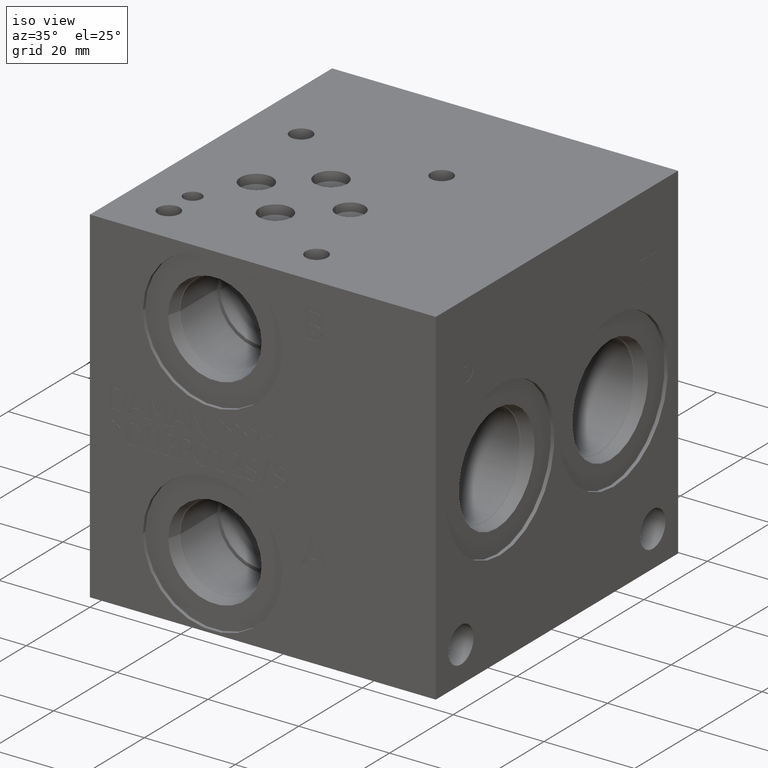
[diagram: clean part render]
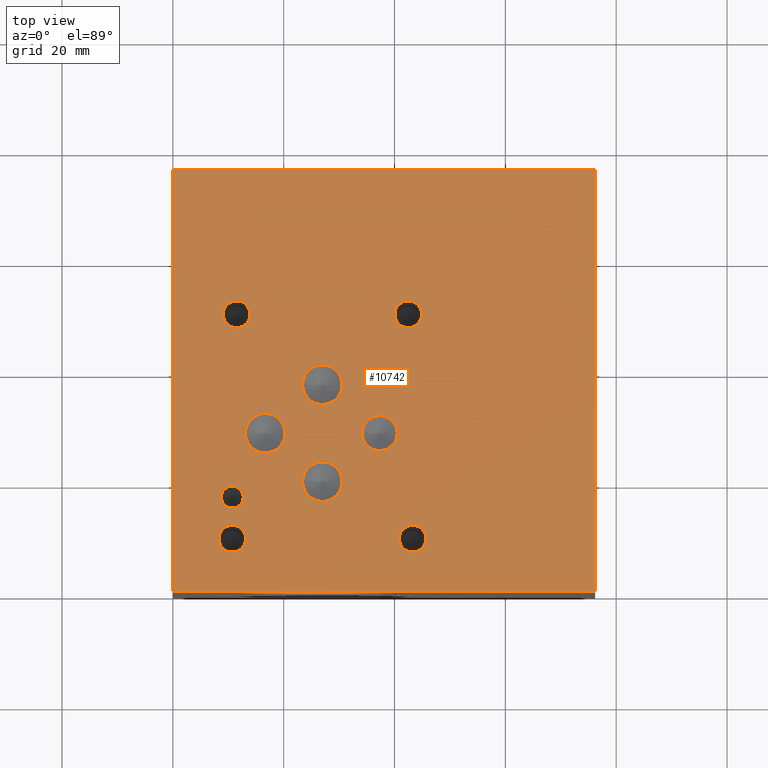
[diagram: tour spotlight — one face highlighted and labeled with its STEP entity id]
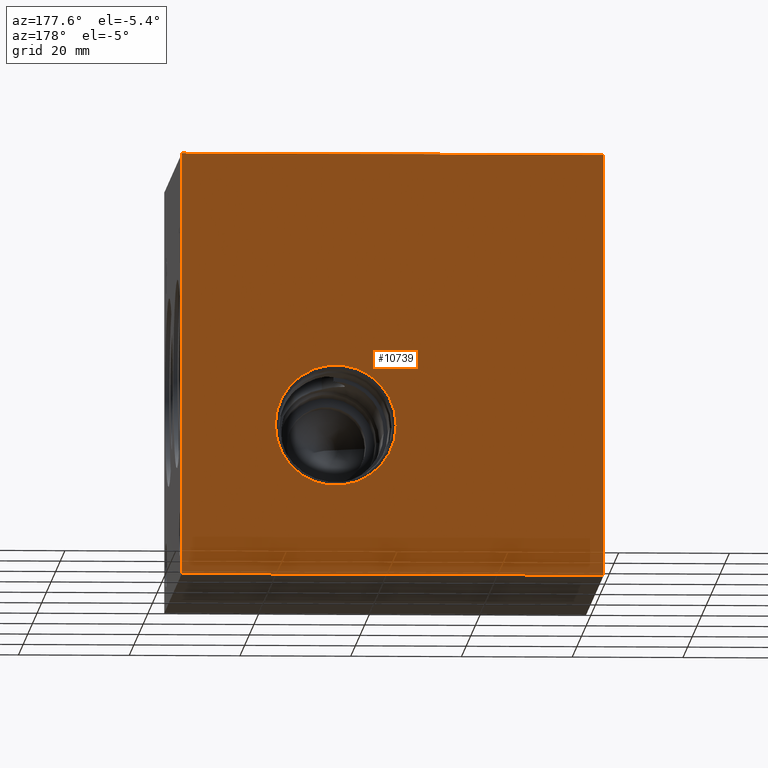
[diagram: tour spotlight — one face highlighted and labeled with its STEP entity id]
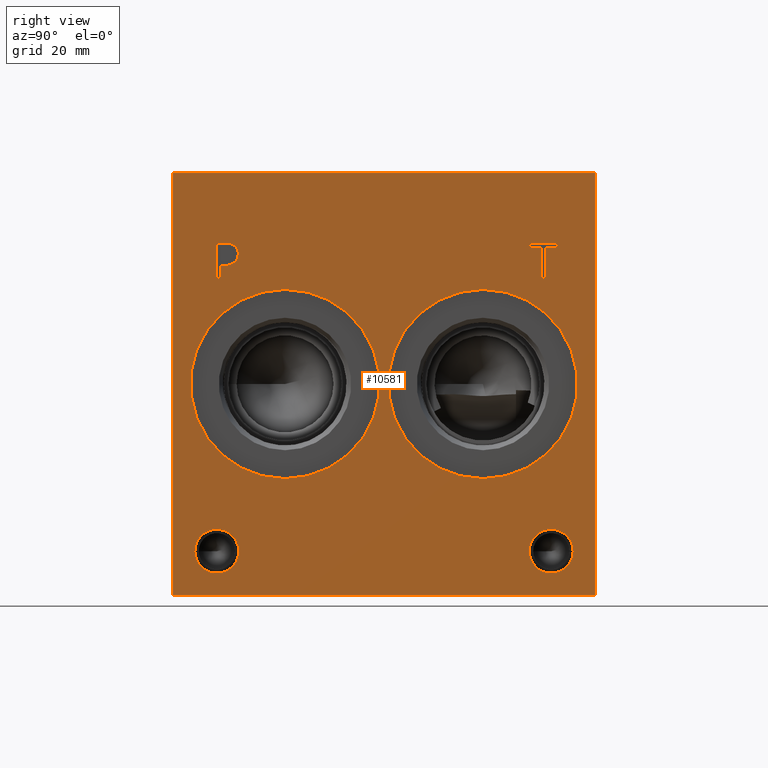
[diagram: tour spotlight — one face highlighted and labeled with its STEP entity id]
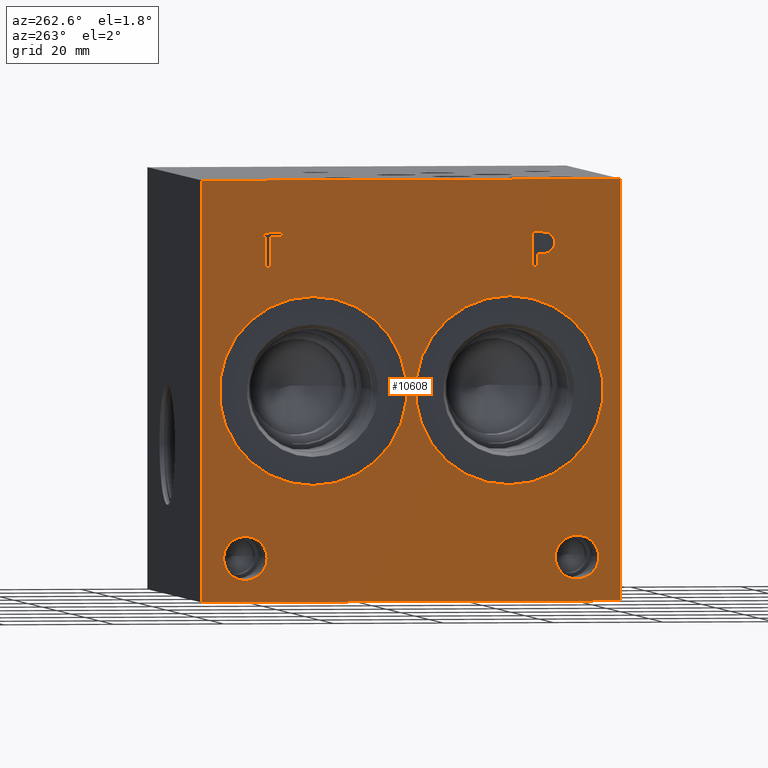
[diagram: tour spotlight — one face highlighted and labeled with its STEP entity id]
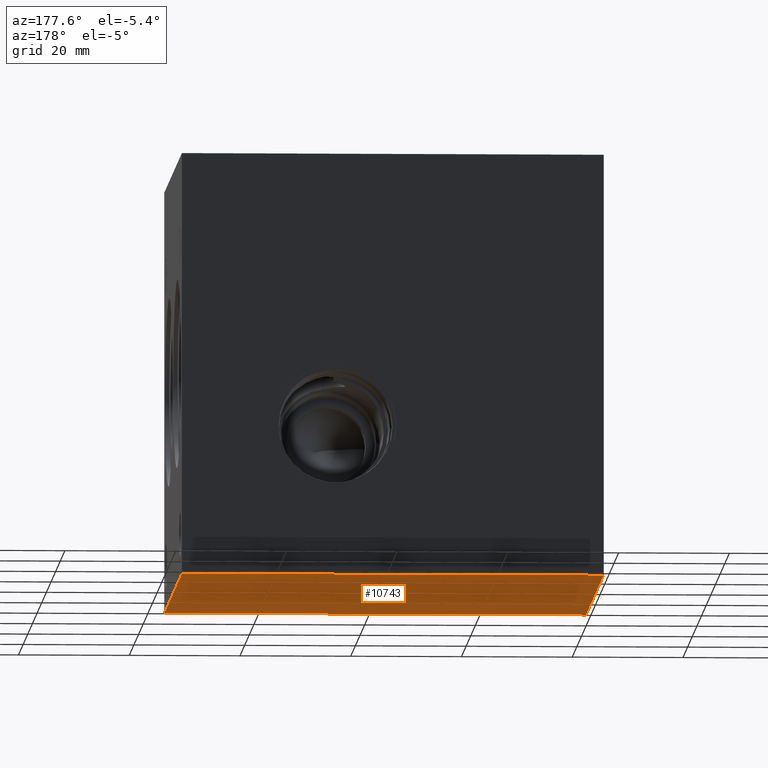
[diagram: tour spotlight — one face highlighted and labeled with its STEP entity id]
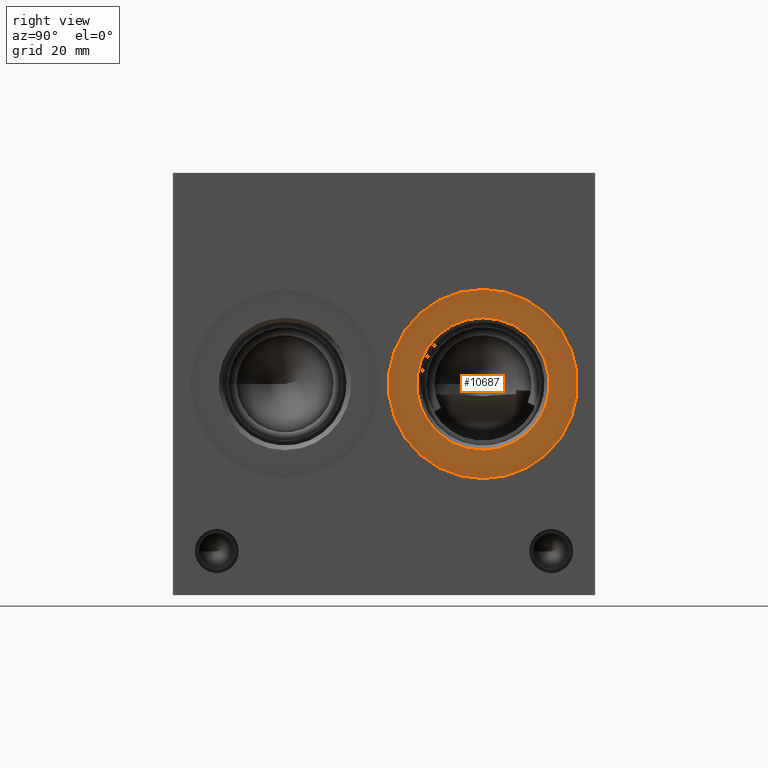
[diagram: tour spotlight — one face highlighted and labeled with its STEP entity id]
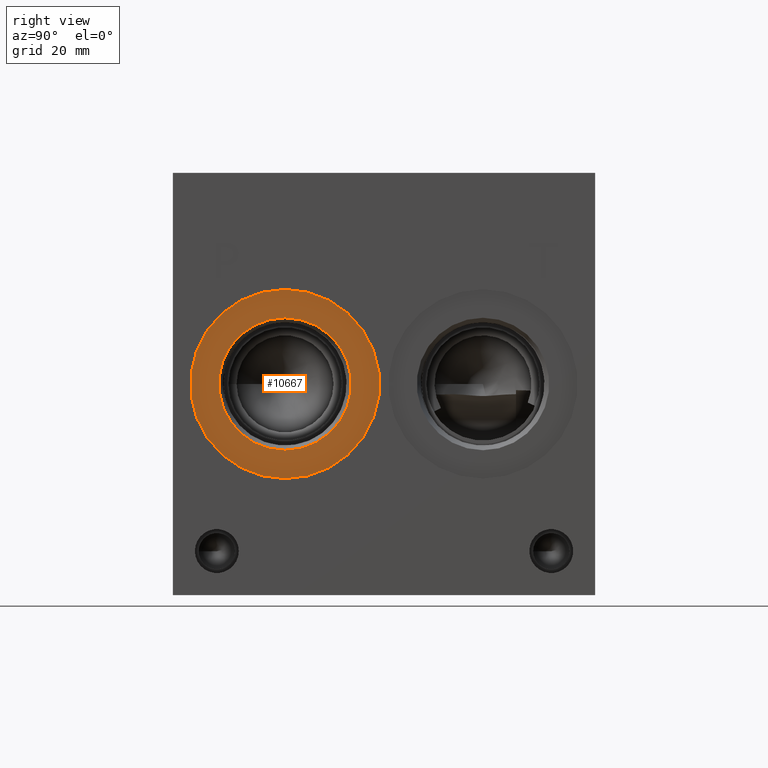
[diagram: tour spotlight — one face highlighted and labeled with its STEP entity id]
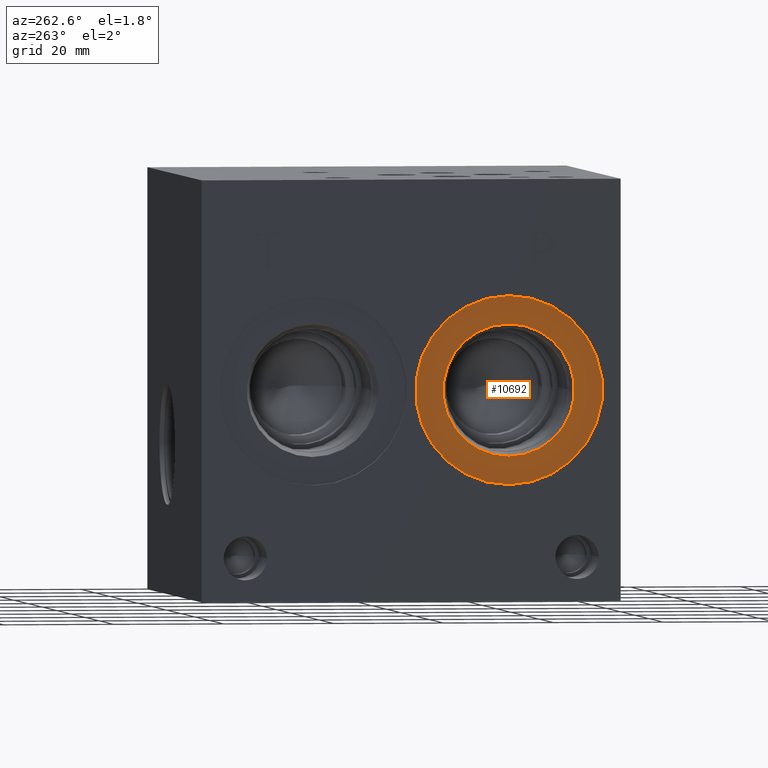
[diagram: tour spotlight — one face highlighted and labeled with its STEP entity id]
A machine part: a face-by-face anatomy tour. The part has 549 B-rep faces; the first image is the clean iso view, then the 8 largest visible faces are spotlighted one at a time (largest first), each with its STEP entity span.

Face 1 — top view, entity #10742. In plain terms, the highlighted planar face has unit normal (0, 0, 1).
Definition (entity closure, byte-faithful):
#134=CIRCLE('',#11064,3.175);
#135=CIRCLE('',#11065,3.175);
#138=CIRCLE('',#11070,3.5687);
#139=CIRCLE('',#11071,3.5687);
#142=CIRCLE('',#11076,3.5687);
#143=CIRCLE('',#11077,3.5687);
#146=CIRCLE('',#11082,3.5687);
#147=CIRCLE('',#11083,3.5687);
#150=CIRCLE('',#11088,1.9812);
#151=CIRCLE('',#11089,1.9812);
#157=CIRCLE('',#11098,2.413);
#158=CIRCLE('',#11099,2.413);
#164=CIRCLE('',#11109,2.413);
#165=CIRCLE('',#11110,2.413);
#171=CIRCLE('',#11120,2.413);
#172=CIRCLE('',#11121,2.413);
#178=CIRCLE('',#11131,2.413);
#179=CIRCLE('',#11132,2.413);
#401=FACE_BOUND('',#2009,.T.);
#402=FACE_BOUND('',#2010,.T.);
#403=FACE_BOUND('',#2011,.T.);
#404=FACE_BOUND('',#2012,.T.);
#405=FACE_BOUND('',#2013,.T.);
#406=FACE_BOUND('',#2014,.T.);
#407=FACE_BOUND('',#2015,.T.);
#408=FACE_BOUND('',#2016,.T.);
#409=FACE_BOUND('',#2017,.T.);
#1388=FACE_OUTER_BOUND('',#2008,.T.);
#2008=EDGE_LOOP('',(#9446,#9447,#9448,#9449));
#2009=EDGE_LOOP('',(#9450,#9451));
#2010=EDGE_LOOP('',(#9452,#9453));
#2011=EDGE_LOOP('',(#9454,#9455));
#2012=EDGE_LOOP('',(#9456,#9457));
#2013=EDGE_LOOP('',(#9458,#9459));
#2014=EDGE_LOOP('',(#9460,#9461));
#2015=EDGE_LOOP('',(#9462,#9463));
#2016=EDGE_LOOP('',(#9464,#9465));
#2017=EDGE_LOOP('',(#9466,#9467));
#2328=LINE('',#16003,#3309);
#2818=LINE('',#17521,#3799);
#2876=LINE('',#17792,#3857);
#2999=LINE('',#18589,#3980);
#3309=VECTOR('',#11855,10.);
#3799=VECTOR('',#12701,10.);
#3857=VECTOR('',#12813,10.);
#3980=VECTOR('',#13610,10.);
#4325=VERTEX_POINT('',#16000);
#4326=VERTEX_POINT('',#16002);
#4696=VERTEX_POINT('',#17519);
#4754=VERTEX_POINT('',#17791);
#4782=VERTEX_POINT('',#17867);
#4783=VERTEX_POINT('',#17868);
#4787=VERTEX_POINT('',#17880);
#4788=VERTEX_POINT('',#17881);
#4792=VERTEX_POINT('',#17893);
#4793=VERTEX_POINT('',#17894);
#4797=VERTEX_POINT('',#17906);
#4798=VERTEX_POINT('',#17907);
#4802=VERTEX_POINT('',#17919);
#4803=VERTEX_POINT('',#17920);
#4810=VERTEX_POINT('',#17939);
#4811=VERTEX_POINT('',#17940);
#4818=VERTEX_POINT('',#17961);
#4819=VERTEX_POINT('',#17962);
#4826=VERTEX_POINT('',#17983);
#4827=VERTEX_POINT('',#17984);
#4834=VERTEX_POINT('',#18005);
#4835=VERTEX_POINT('',#18006);
#5517=EDGE_CURVE('',#4326,#4325,#2328,.T.);
#6071=EDGE_CURVE('',#4325,#4696,#2818,.T.);
#6153=EDGE_CURVE('',#4754,#4326,#2876,.T.);
#6190=EDGE_CURVE('',#4782,#4783,#134,.T.);
#6191=EDGE_CURVE('',#4783,#4782,#135,.T.);
#6196=EDGE_CURVE('',#4787,#4788,#138,.T.);
#6197=EDGE_CURVE('',#4788,#4787,#139,.T.);
#6202=EDGE_CURVE('',#4792,#4793,#142,.T.);
#6203=EDGE_CURVE('',#4793,#4792,#143,.T.);
#6208=EDGE_CURVE('',#4797,#4798,#146,.T.);
#6209=EDGE_CURVE('',#4798,#4797,#147,.T.);
#6214=EDGE_CURVE('',#4802,#4803,#150,.T.);
#6215=EDGE_CURVE('',#4803,#4802,#151,.T.);
#6223=EDGE_CURVE('',#4810,#4811,#157,.T.);
#6224=EDGE_CURVE('',#4811,#4810,#158,.T.);
#6233=EDGE_CURVE('',#4818,#4819,#164,.T.);
#6234=EDGE_CURVE('',#4819,#4818,#165,.T.);
#6243=EDGE_CURVE('',#4826,#4827,#171,.T.);
#6244=EDGE_CURVE('',#4827,#4826,#172,.T.);
#6253=EDGE_CURVE('',#4834,#4835,#178,.T.);
#6254=EDGE_CURVE('',#4835,#4834,#179,.T.);
#6491=EDGE_CURVE('',#4696,#4754,#2999,.T.);
#9446=ORIENTED_EDGE('',*,*,#5517,.T.);
#9447=ORIENTED_EDGE('',*,*,#6071,.T.);
#9448=ORIENTED_EDGE('',*,*,#6491,.T.);
#9449=ORIENTED_EDGE('',*,*,#6153,.T.);
#9450=ORIENTED_EDGE('',*,*,#6190,.T.);
#9451=ORIENTED_EDGE('',*,*,#6191,.T.);
#9452=ORIENTED_EDGE('',*,*,#6196,.T.);
#9453=ORIENTED_EDGE('',*,*,#6197,.T.);
#9454=ORIENTED_EDGE('',*,*,#6202,.T.);
#9455=ORIENTED_EDGE('',*,*,#6203,.T.);
#9456=ORIENTED_EDGE('',*,*,#6208,.T.);
#9457=ORIENTED_EDGE('',*,*,#6209,.T.);
#9458=ORIENTED_EDGE('',*,*,#6214,.T.);
#9459=ORIENTED_EDGE('',*,*,#6215,.T.);
#9460=ORIENTED_EDGE('',*,*,#6223,.T.);
#9461=ORIENTED_EDGE('',*,*,#6224,.T.);
#9462=ORIENTED_EDGE('',*,*,#6233,.T.);
#9463=ORIENTED_EDGE('',*,*,#6234,.T.);
#9464=ORIENTED_EDGE('',*,*,#6243,.T.);
#9465=ORIENTED_EDGE('',*,*,#6244,.T.);
#9466=ORIENTED_EDGE('',*,*,#6253,.T.);
#9467=ORIENTED_EDGE('',*,*,#6254,.T.);
#9781=PLANE('',#11382);
#10742=ADVANCED_FACE('',(#1388,#401,#402,#403,#404,#405,#406,#407,#408,
#409),#9781,.T.);
#11064=AXIS2_PLACEMENT_3D('',#17869,#12882,#12883);
#11065=AXIS2_PLACEMENT_3D('',#17870,#12884,#12885);
#11070=AXIS2_PLACEMENT_3D('',#17882,#12896,#12897);
#11071=AXIS2_PLACEMENT_3D('',#17883,#12898,#12899);
#11076=AXIS2_PLACEMENT_3D('',#17895,#12910,#12911);
#11077=AXIS2_PLACEMENT_3D('',#17896,#12912,#12913);
#11082=AXIS2_PLACEMENT_3D('',#17908,#12924,#12925);
#11083=AXIS2_PLACEMENT_3D('',#17909,#12926,#12927);
#11088=AXIS2_PLACEMENT_3D('',#17921,#12938,#12939);
#11089=AXIS2_PLACEMENT_3D('',#17922,#12940,#12941);
#11098=AXIS2_PLACEMENT_3D('',#17941,#12960,#12961);
#11099=AXIS2_PLACEMENT_3D('',#17942,#12962,#12963);
#11109=AXIS2_PLACEMENT_3D('',#17963,#12985,#12986);
#11110=AXIS2_PLACEMENT_3D('',#17964,#12987,#12988);
#11120=AXIS2_PLACEMENT_3D('',#17985,#13010,#13011);
#11121=AXIS2_PLACEMENT_3D('',#17986,#13012,#13013);
#11131=AXIS2_PLACEMENT_3D('',#18007,#13035,#13036);
#11132=AXIS2_PLACEMENT_3D('',#18008,#13037,#13038);
#11382=AXIS2_PLACEMENT_3D('',#18592,#13615,#13616);
#11855=DIRECTION('',(1.,0.,0.));
#12701=DIRECTION('',(0.,1.,0.));
#12813=DIRECTION('',(0.,-1.,0.));
#12882=DIRECTION('center_axis',(0.,0.,-1.));
#12883=DIRECTION('ref_axis',(1.,0.,0.));
#12884=DIRECTION('center_axis',(0.,0.,-1.));
#12885=DIRECTION('ref_axis',(1.,0.,0.));
#12896=DIRECTION('center_axis',(0.,0.,-1.));
#12897=DIRECTION('ref_axis',(1.,0.,0.));
#12898=DIRECTION('center_axis',(0.,0.,-1.));
#12899=DIRECTION('ref_axis',(1.,0.,0.));
#12910=DIRECTION('center_axis',(0.,0.,-1.));
#12911=DIRECTION('ref_axis',(1.,0.,0.));
#12912=DIRECTION('center_axis',(0.,0.,-1.));
#12913=DIRECTION('ref_axis',(1.,0.,0.));
#12924=DIRECTION('center_axis',(0.,0.,-1.));
#12925=DIRECTION('ref_axis',(1.,0.,0.));
#12926=DIRECTION('center_axis',(0.,0.,-1.));
#12927=DIRECTION('ref_axis',(1.,0.,0.));
#12938=DIRECTION('center_axis',(0.,0.,-1.));
#12939=DIRECTION('ref_axis',(1.,0.,0.));
#12940=DIRECTION('center_axis',(0.,0.,-1.));
#12941=DIRECTION('ref_axis',(1.,0.,0.));
#12960=DIRECTION('center_axis',(0.,0.,-1.));
#12961=DIRECTION('ref_axis',(1.,0.,0.));
#12962=DIRECTION('center_axis',(0.,0.,-1.));
#12963=DIRECTION('ref_axis',(1.,0.,0.));
#12985=DIRECTION('center_axis',(0.,0.,-1.));
#12986=DIRECTION('ref_axis',(1.,0.,0.));
#12987=DIRECTION('center_axis',(0.,0.,-1.));
#12988=DIRECTION('ref_axis',(1.,0.,0.));
#13010=DIRECTION('center_axis',(0.,0.,-1.));
#13011=DIRECTION('ref_axis',(1.,0.,0.));
#13012=DIRECTION('center_axis',(0.,0.,-1.));
#13013=DIRECTION('ref_axis',(1.,0.,0.));
#13035=DIRECTION('center_axis',(0.,0.,-1.));
#13036=DIRECTION('ref_axis',(1.,0.,0.));
#13037=DIRECTION('center_axis',(0.,0.,-1.));
#13038=DIRECTION('ref_axis',(1.,0.,0.));
#13610=DIRECTION('',(-1.,0.,0.));
#13615=DIRECTION('center_axis',(0.,0.,1.));
#13616=DIRECTION('ref_axis',(1.,0.,0.));
#16000=CARTESIAN_POINT('',(76.2,0.,76.2));
#16002=CARTESIAN_POINT('',(0.,0.,76.2));
#16003=CARTESIAN_POINT('',(0.,0.,76.2));
#17519=CARTESIAN_POINT('',(76.2,76.2,76.2));
#17521=CARTESIAN_POINT('',(76.2,0.,76.2));
#17791=CARTESIAN_POINT('',(0.,76.2,76.2));
#17792=CARTESIAN_POINT('',(0.,76.2,76.2));
#17867=CARTESIAN_POINT('',(40.4876,28.575,76.2));
#17868=CARTESIAN_POINT('',(34.1376,28.575,76.2));
#17869=CARTESIAN_POINT('Origin',(37.3126,28.575,76.2));
#17870=CARTESIAN_POINT('Origin',(37.3126,28.575,76.2));
#17880=CARTESIAN_POINT('',(30.5435,37.3126,76.2));
#17881=CARTESIAN_POINT('',(23.4061,37.3126,76.2));
#17882=CARTESIAN_POINT('Origin',(26.9748,37.3126,76.2));
#17883=CARTESIAN_POINT('Origin',(26.9748,37.3126,76.2));
#17893=CARTESIAN_POINT('',(20.2311,28.575,76.2));
#17894=CARTESIAN_POINT('',(13.0937,28.575,76.2));
#17895=CARTESIAN_POINT('Origin',(16.6624,28.575,76.2));
#17896=CARTESIAN_POINT('Origin',(16.6624,28.575,76.2));
#17906=CARTESIAN_POINT('',(30.5435,19.8374,76.2));
#17907=CARTESIAN_POINT('',(23.4061,19.8374,76.2));
#17908=CARTESIAN_POINT('Origin',(26.9748,19.8374,76.2));
#17909=CARTESIAN_POINT('Origin',(26.9748,19.8374,76.2));
#17919=CARTESIAN_POINT('',(12.7,17.018,76.2));
#17920=CARTESIAN_POINT('',(8.7376,17.018,76.2));
#17921=CARTESIAN_POINT('Origin',(10.7188,17.018,76.2));
#17922=CARTESIAN_POINT('Origin',(10.7188,17.018,76.2));
#17939=CARTESIAN_POINT('',(45.6692,9.525,76.2));
#17940=CARTESIAN_POINT('',(40.8432,9.525,76.2));
#17941=CARTESIAN_POINT('Origin',(43.2562,9.525,76.2));
#17942=CARTESIAN_POINT('Origin',(43.2562,9.525,76.2));
#17961=CARTESIAN_POINT('',(13.9192,50.0126,76.2));
#17962=CARTESIAN_POINT('',(9.0932,50.0126,76.2));
#17963=CARTESIAN_POINT('Origin',(11.5062,50.0126,76.2));
#17964=CARTESIAN_POINT('Origin',(11.5062,50.0126,76.2));
#17983=CARTESIAN_POINT('',(44.8818,50.0126,76.2));
#17984=CARTESIAN_POINT('',(40.0558,50.0126,76.2));
#17985=CARTESIAN_POINT('Origin',(42.4688,50.0126,76.2));
#17986=CARTESIAN_POINT('Origin',(42.4688,50.0126,76.2));
#18005=CARTESIAN_POINT('',(13.1318,9.525,76.2));
#18006=CARTESIAN_POINT('',(8.3058,9.525,76.2));
#18007=CARTESIAN_POINT('Origin',(10.7188,9.525,76.2));
#18008=CARTESIAN_POINT('Origin',(10.7188,9.525,76.2));
#18589=CARTESIAN_POINT('',(76.2,76.2,76.2));
#18592=CARTESIAN_POINT('Origin',(38.1,38.1,76.2));

Face 2 — auxiliary view, entity #10739. In plain terms, the highlighted planar face has unit normal (0, 1, 0).
Definition (entity closure, byte-faithful):
#314=CIRCLE('',#11354,10.9093);
#315=CIRCLE('',#11355,10.9093);
#400=FACE_BOUND('',#2005,.T.);
#1385=FACE_OUTER_BOUND('',#2004,.T.);
#2004=EDGE_LOOP('',(#9426,#9427,#9428,#9429));
#2005=EDGE_LOOP('',(#9430,#9431));
#2817=LINE('',#17520,#3798);
#2877=LINE('',#17793,#3858);
#2998=LINE('',#18588,#3979);
#2999=LINE('',#18589,#3980);
#3798=VECTOR('',#12700,10.);
#3858=VECTOR('',#12814,10.);
#3979=VECTOR('',#13609,10.);
#3980=VECTOR('',#13610,10.);
#4695=VERTEX_POINT('',#17517);
#4696=VERTEX_POINT('',#17519);
#4753=VERTEX_POINT('',#17789);
#4754=VERTEX_POINT('',#17791);
#4985=VERTEX_POINT('',#18538);
#4986=VERTEX_POINT('',#18539);
#6070=EDGE_CURVE('',#4695,#4696,#2817,.T.);
#6154=EDGE_CURVE('',#4753,#4754,#2877,.T.);
#6467=EDGE_CURVE('',#4985,#4986,#314,.T.);
#6468=EDGE_CURVE('',#4986,#4985,#315,.T.);
#6490=EDGE_CURVE('',#4695,#4753,#2998,.T.);
#6491=EDGE_CURVE('',#4696,#4754,#2999,.T.);
#9426=ORIENTED_EDGE('',*,*,#6490,.T.);
#9427=ORIENTED_EDGE('',*,*,#6154,.T.);
#9428=ORIENTED_EDGE('',*,*,#6491,.F.);
#9429=ORIENTED_EDGE('',*,*,#6070,.F.);
#9430=ORIENTED_EDGE('',*,*,#6467,.T.);
#9431=ORIENTED_EDGE('',*,*,#6468,.T.);
#9778=PLANE('',#11379);
#10739=ADVANCED_FACE('',(#1385,#400),#9778,.T.);
#11354=AXIS2_PLACEMENT_3D('',#18540,#13550,#13551);
#11355=AXIS2_PLACEMENT_3D('',#18541,#13552,#13553);
#11379=AXIS2_PLACEMENT_3D('',#18587,#13607,#13608);
#12700=DIRECTION('',(0.,0.,1.));
#12814=DIRECTION('',(0.,0.,1.));
#13550=DIRECTION('center_axis',(0.,-1.,0.));
#13551=DIRECTION('ref_axis',(1.,0.,0.));
#13552=DIRECTION('center_axis',(0.,-1.,0.));
#13553=DIRECTION('ref_axis',(1.,0.,0.));
#13607=DIRECTION('center_axis',(0.,1.,0.));
#13608=DIRECTION('ref_axis',(-1.,0.,0.));
#13609=DIRECTION('',(-1.,0.,0.));
#13610=DIRECTION('',(-1.,0.,0.));
#17517=CARTESIAN_POINT('',(76.2,76.2,0.));
#17519=CARTESIAN_POINT('',(76.2,76.2,76.2));
#17520=CARTESIAN_POINT('',(76.2,76.2,0.));
#17789=CARTESIAN_POINT('',(0.,76.2,0.));
#17791=CARTESIAN_POINT('',(0.,76.2,76.2));
#17793=CARTESIAN_POINT('',(0.,76.2,0.));
#18538=CARTESIAN_POINT('',(59.3217,76.2,27.0002));
#18539=CARTESIAN_POINT('',(37.5031,76.2,27.0002));
#18540=CARTESIAN_POINT('Origin',(48.4124,76.2,27.0002));
#18541=CARTESIAN_POINT('Origin',(48.4124,76.2,27.0002));
#18587=CARTESIAN_POINT('Origin',(76.2,76.2,0.));
#18588=CARTESIAN_POINT('',(76.2,76.2,0.));
#18589=CARTESIAN_POINT('',(76.2,76.2,76.2));

Face 3 — right view, entity #10581. In plain terms, the highlighted planar face has unit normal (1, 0, 0).
Definition (entity closure, byte-faithful):
#116=CIRCLE('',#11016,3.9624);
#117=CIRCLE('',#11017,3.9624);
#118=CIRCLE('',#11018,3.9624);
#119=CIRCLE('',#11019,3.9624);
#120=CIRCLE('',#11020,17.0688);
#121=CIRCLE('',#11021,17.0688);
#122=CIRCLE('',#11022,17.0688);
#123=CIRCLE('',#11023,17.0688);
#365=FACE_BOUND('',#1812,.T.);
#366=FACE_BOUND('',#1813,.T.);
#367=FACE_BOUND('',#1814,.T.);
#368=FACE_BOUND('',#1815,.T.);
#369=FACE_BOUND('',#1816,.T.);
#370=FACE_BOUND('',#1817,.T.);
#668=B_SPLINE_CURVE_WITH_KNOTS('',2,(#17419,#17420,#17421,#17422),
 .UNSPECIFIED.,.F.,.F.,(3,1,3),(0.,1.,2.),.UNSPECIFIED.);
#670=B_SPLINE_CURVE_WITH_KNOTS('',2,(#17440,#17441,#17442,#17443),
 .UNSPECIFIED.,.F.,.F.,(3,1,3),(0.,1.,2.),.UNSPECIFIED.);
#672=B_SPLINE_CURVE_WITH_KNOTS('',2,(#17489,#17490,#17491,#17492),
 .UNSPECIFIED.,.F.,.F.,(3,1,3),(0.,1.,2.),.UNSPECIFIED.);
#674=B_SPLINE_CURVE_WITH_KNOTS('',2,(#17507,#17508,#17509,#17510),
 .UNSPECIFIED.,.F.,.F.,(3,1,3),(0.,1.,2.),.UNSPECIFIED.);
#1227=FACE_OUTER_BOUND('',#1811,.T.);
#1811=EDGE_LOOP('',(#8595,#8596,#8597,#8598));
#1812=EDGE_LOOP('',(#8599,#8600));
#1813=EDGE_LOOP('',(#8601,#8602));
#1814=EDGE_LOOP('',(#8603,#8604));
#1815=EDGE_LOOP('',(#8605,#8606));
#1816=EDGE_LOOP('',(#8607,#8608,#8609,#8610,#8611,#8612,#8613,#8614));
#1817=EDGE_LOOP('',(#8615,#8616,#8617,#8618,#8619,#8620,#8621,#8622,#8623));
#2327=LINE('',#16001,#3308);
#2800=LINE('',#17452,#3781);
#2803=LINE('',#17458,#3784);
#2806=LINE('',#17464,#3787);
#2809=LINE('',#17470,#3790);
#2812=LINE('',#17476,#3793);
#2816=LINE('',#17518,#3797);
#2817=LINE('',#17520,#3798);
#2818=LINE('',#17521,#3799);
#2819=LINE('',#17540,#3800);
#2820=LINE('',#17542,#3801);
#2821=LINE('',#17544,#3802);
#2822=LINE('',#17546,#3803);
#2823=LINE('',#17548,#3804);
#2824=LINE('',#17550,#3805);
#2825=LINE('',#17552,#3806);
#2826=LINE('',#17553,#3807);
#3308=VECTOR('',#11854,10.);
#3781=VECTOR('',#12671,10.);
#3784=VECTOR('',#12676,10.);
#3787=VECTOR('',#12681,10.);
#3790=VECTOR('',#12686,10.);
#3793=VECTOR('',#12691,10.);
#3797=VECTOR('',#12699,10.);
#3798=VECTOR('',#12700,10.);
#3799=VECTOR('',#12701,10.);
#3800=VECTOR('',#12718,10.);
#3801=VECTOR('',#12719,10.);
#3802=VECTOR('',#12720,10.);
#3803=VECTOR('',#12721,10.);
#3804=VECTOR('',#12722,10.);
#3805=VECTOR('',#12723,10.);
#3806=VECTOR('',#12724,10.);
#3807=VECTOR('',#12725,10.);
#4324=VERTEX_POINT('',#15998);
#4325=VERTEX_POINT('',#16000);
#4677=VERTEX_POINT('',#17417);
#4678=VERTEX_POINT('',#17418);
#4681=VERTEX_POINT('',#17439);
#4683=VERTEX_POINT('',#17451);
#4685=VERTEX_POINT('',#17457);
#4687=VERTEX_POINT('',#17463);
#4689=VERTEX_POINT('',#17469);
#4691=VERTEX_POINT('',#17475);
#4693=VERTEX_POINT('',#17488);
#4695=VERTEX_POINT('',#17517);
#4696=VERTEX_POINT('',#17519);
#4697=VERTEX_POINT('',#17522);
#4698=VERTEX_POINT('',#17523);
#4699=VERTEX_POINT('',#17526);
#4700=VERTEX_POINT('',#17527);
#4701=VERTEX_POINT('',#17530);
#4702=VERTEX_POINT('',#17531);
#4703=VERTEX_POINT('',#17534);
#4704=VERTEX_POINT('',#17535);
#4705=VERTEX_POINT('',#17538);
#4706=VERTEX_POINT('',#17539);
#4707=VERTEX_POINT('',#17541);
#4708=VERTEX_POINT('',#17543);
#4709=VERTEX_POINT('',#17545);
#4710=VERTEX_POINT('',#17547);
#4711=VERTEX_POINT('',#17549);
#4712=VERTEX_POINT('',#17551);
#5516=EDGE_CURVE('',#4324,#4325,#2327,.T.);
#6042=EDGE_CURVE('',#4677,#4678,#668,.T.);
#6046=EDGE_CURVE('',#4681,#4677,#670,.T.);
#6049=EDGE_CURVE('',#4683,#4681,#2800,.T.);
#6052=EDGE_CURVE('',#4685,#4683,#2803,.T.);
#6055=EDGE_CURVE('',#4687,#4685,#2806,.T.);
#6058=EDGE_CURVE('',#4689,#4687,#2809,.T.);
#6061=EDGE_CURVE('',#4691,#4689,#2812,.T.);
#6064=EDGE_CURVE('',#4693,#4691,#672,.T.);
#6067=EDGE_CURVE('',#4678,#4693,#674,.T.);
#6069=EDGE_CURVE('',#4324,#4695,#2816,.T.);
#6070=EDGE_CURVE('',#4695,#4696,#2817,.T.);
#6071=EDGE_CURVE('',#4325,#4696,#2818,.T.);
#6072=EDGE_CURVE('',#4697,#4698,#116,.T.);
#6073=EDGE_CURVE('',#4698,#4697,#117,.T.);
#6074=EDGE_CURVE('',#4699,#4700,#118,.T.);
#6075=EDGE_CURVE('',#4700,#4699,#119,.T.);
#6076=EDGE_CURVE('',#4701,#4702,#120,.T.);
#6077=EDGE_CURVE('',#4702,#4701,#121,.T.);
#6078=EDGE_CURVE('',#4703,#4704,#122,.T.);
#6079=EDGE_CURVE('',#4704,#4703,#123,.T.);
#6080=EDGE_CURVE('',#4705,#4706,#2819,.T.);
#6081=EDGE_CURVE('',#4706,#4707,#2820,.T.);
#6082=EDGE_CURVE('',#4707,#4708,#2821,.T.);
#6083=EDGE_CURVE('',#4708,#4709,#2822,.T.);
#6084=EDGE_CURVE('',#4709,#4710,#2823,.T.);
#6085=EDGE_CURVE('',#4710,#4711,#2824,.T.);
#6086=EDGE_CURVE('',#4711,#4712,#2825,.T.);
#6087=EDGE_CURVE('',#4712,#4705,#2826,.T.);
#8595=ORIENTED_EDGE('',*,*,#6069,.T.);
#8596=ORIENTED_EDGE('',*,*,#6070,.T.);
#8597=ORIENTED_EDGE('',*,*,#6071,.F.);
#8598=ORIENTED_EDGE('',*,*,#5516,.F.);
#8599=ORIENTED_EDGE('',*,*,#6072,.T.);
#8600=ORIENTED_EDGE('',*,*,#6073,.T.);
#8601=ORIENTED_EDGE('',*,*,#6074,.T.);
#8602=ORIENTED_EDGE('',*,*,#6075,.T.);
#8603=ORIENTED_EDGE('',*,*,#6076,.T.);
#8604=ORIENTED_EDGE('',*,*,#6077,.T.);
#8605=ORIENTED_EDGE('',*,*,#6078,.T.);
#8606=ORIENTED_EDGE('',*,*,#6079,.T.);
#8607=ORIENTED_EDGE('',*,*,#6080,.T.);
#8608=ORIENTED_EDGE('',*,*,#6081,.T.);
#8609=ORIENTED_EDGE('',*,*,#6082,.T.);
#8610=ORIENTED_EDGE('',*,*,#6083,.T.);
#8611=ORIENTED_EDGE('',*,*,#6084,.T.);
#8612=ORIENTED_EDGE('',*,*,#6085,.T.);
#8613=ORIENTED_EDGE('',*,*,#6086,.T.);
#8614=ORIENTED_EDGE('',*,*,#6087,.T.);
#8615=ORIENTED_EDGE('',*,*,#6042,.T.);
#8616=ORIENTED_EDGE('',*,*,#6067,.T.);
#8617=ORIENTED_EDGE('',*,*,#6064,.T.);
#8618=ORIENTED_EDGE('',*,*,#6061,.T.);
#8619=ORIENTED_EDGE('',*,*,#6058,.T.);
#8620=ORIENTED_EDGE('',*,*,#6055,.T.);
#8621=ORIENTED_EDGE('',*,*,#6052,.T.);
#8622=ORIENTED_EDGE('',*,*,#6049,.T.);
#8623=ORIENTED_EDGE('',*,*,#6046,.T.);
#9725=PLANE('',#11015);
#10581=ADVANCED_FACE('',(#1227,#365,#366,#367,#368,#369,#370),#9725,.T.);
#11015=AXIS2_PLACEMENT_3D('',#17516,#12697,#12698);
#11016=AXIS2_PLACEMENT_3D('',#17524,#12702,#12703);
#11017=AXIS2_PLACEMENT_3D('',#17525,#12704,#12705);
#11018=AXIS2_PLACEMENT_3D('',#17528,#12706,#12707);
#11019=AXIS2_PLACEMENT_3D('',#17529,#12708,#12709);
#11020=AXIS2_PLACEMENT_3D('',#17532,#12710,#12711);
#11021=AXIS2_PLACEMENT_3D('',#17533,#12712,#12713);
#11022=AXIS2_PLACEMENT_3D('',#17536,#12714,#12715);
#11023=AXIS2_PLACEMENT_3D('',#17537,#12716,#12717);
#11854=DIRECTION('',(0.,0.,1.));
#12671=DIRECTION('',(0.,1.,0.));
#12676=DIRECTION('',(0.,0.,1.));
#12681=DIRECTION('',(0.,-1.,0.));
#12686=DIRECTION('',(0.,0.,-1.));
#12691=DIRECTION('',(0.,-1.,0.));
#12697=DIRECTION('center_axis',(1.,0.,0.));
#12698=DIRECTION('ref_axis',(0.,1.,0.));
#12699=DIRECTION('',(0.,1.,0.));
#12700=DIRECTION('',(0.,0.,1.));
#12701=DIRECTION('',(0.,1.,0.));
#12702=DIRECTION('center_axis',(-1.,0.,0.));
#12703=DIRECTION('ref_axis',(0.,1.,0.));
#12704=DIRECTION('center_axis',(-1.,0.,0.));
#12705=DIRECTION('ref_axis',(0.,1.,0.));
#12706=DIRECTION('center_axis',(-1.,0.,0.));
#12707=DIRECTION('ref_axis',(0.,1.,0.));
#12708=DIRECTION('center_axis',(-1.,0.,0.));
#12709=DIRECTION('ref_axis',(0.,1.,0.));
#12710=DIRECTION('center_axis',(-1.,0.,0.));
#12711=DIRECTION('ref_axis',(0.,0.,-1.));
#12712=DIRECTION('center_axis',(-1.,0.,0.));
#12713=DIRECTION('ref_axis',(0.,0.,-1.));
#12714=DIRECTION('center_axis',(-1.,0.,0.));
#12715=DIRECTION('ref_axis',(0.,0.,-1.));
#12716=DIRECTION('center_axis',(-1.,0.,0.));
#12717=DIRECTION('ref_axis',(0.,0.,-1.));
#12718=DIRECTION('',(0.,-1.,0.));
#12719=DIRECTION('',(0.,0.,1.));
#12720=DIRECTION('',(0.,-1.,0.));
#12721=DIRECTION('',(0.,0.,1.));
#12722=DIRECTION('',(0.,1.,0.));
#12723=DIRECTION('',(0.,0.,-1.));
#12724=DIRECTION('',(0.,-1.,0.));
#12725=DIRECTION('',(0.,0.,-1.));
#15998=CARTESIAN_POINT('',(76.2,0.,0.));
#16000=CARTESIAN_POINT('',(76.2,0.,76.2));
#16001=CARTESIAN_POINT('',(76.2,0.,0.));
#17417=CARTESIAN_POINT('',(76.2,11.0443172023594,63.1037681439707));
#17418=CARTESIAN_POINT('',(76.2,11.800759654532,61.5857373726039));
#17419=CARTESIAN_POINT('Ctrl Pts',(76.2,11.0443172023594,63.1037681439707));
#17420=CARTESIAN_POINT('Ctrl Pts',(76.2,11.3993820268486,62.8619123939564));
#17421=CARTESIAN_POINT('Ctrl Pts',(76.2,11.800759654532,62.1157616758269));
#17422=CARTESIAN_POINT('Ctrl Pts',(76.2,11.800759654532,61.5857373726039));
#17439=CARTESIAN_POINT('',(76.2,9.3822021543883,63.4999999046326));
#17440=CARTESIAN_POINT('Ctrl Pts',(76.2,9.3822021543883,63.4999999046326));
#17441=CARTESIAN_POINT('Ctrl Pts',(76.2,9.94824752676236,63.4999999046326));
#17442=CARTESIAN_POINT('Ctrl Pts',(76.2,10.740711048086,63.3147486918556));
#17443=CARTESIAN_POINT('Ctrl Pts',(76.2,11.0443172023594,63.1037681439707));
#17451=CARTESIAN_POINT('',(76.2,7.78698337769779,63.4999999046326));
#17452=CARTESIAN_POINT('',(76.2,3.89349168884889,63.4999999046326));
#17457=CARTESIAN_POINT('',(76.2,7.78698337769779,57.15));
#17458=CARTESIAN_POINT('',(76.2,7.78698337769779,28.575));
#17463=CARTESIAN_POINT('',(76.2,8.63090556923729,57.15));
#17464=CARTESIAN_POINT('',(76.2,4.31545278461864,57.15));
#17469=CARTESIAN_POINT('',(76.2,8.63090556923729,59.5170988299279));
#17470=CARTESIAN_POINT('',(76.2,8.63090556923729,29.7585494149639));
#17475=CARTESIAN_POINT('',(76.2,9.34618108523723,59.5170988299279));
#17476=CARTESIAN_POINT('',(76.2,4.67309054261861,59.5170988299279));
#17488=CARTESIAN_POINT('',(76.2,11.2450060162011,60.1757698086904));
#17489=CARTESIAN_POINT('Ctrl Pts',(76.2,11.2450060162011,60.1757698086904));
#17490=CARTESIAN_POINT('Ctrl Pts',(76.2,10.9156705268198,59.8515801863307));
#17491=CARTESIAN_POINT('Ctrl Pts',(76.2,10.0254355320861,59.5170988299279));
#17492=CARTESIAN_POINT('Ctrl Pts',(76.2,9.34618108523723,59.5170988299279));
#17507=CARTESIAN_POINT('Ctrl Pts',(76.2,11.800759654532,61.5857373726039));
#17508=CARTESIAN_POINT('Ctrl Pts',(76.2,11.800759654532,61.1740680108774));
#17509=CARTESIAN_POINT('Ctrl Pts',(76.2,11.5074452343018,60.4330631597695));
#17510=CARTESIAN_POINT('Ctrl Pts',(76.2,11.2450060162011,60.1757698086904));
#17516=CARTESIAN_POINT('Origin',(76.2,0.,0.));
#17517=CARTESIAN_POINT('',(76.2,76.2,0.));
#17518=CARTESIAN_POINT('',(76.2,0.,0.));
#17519=CARTESIAN_POINT('',(76.2,76.2,76.2));
#17520=CARTESIAN_POINT('',(76.2,76.2,0.));
#17521=CARTESIAN_POINT('',(76.2,0.,76.2));
#17522=CARTESIAN_POINT('',(76.2,72.2376,7.9248));
#17523=CARTESIAN_POINT('',(76.2,64.3128,7.9248));
#17524=CARTESIAN_POINT('Origin',(76.2,68.2752,7.9248));
#17525=CARTESIAN_POINT('Origin',(76.2,68.2752,7.9248));
#17526=CARTESIAN_POINT('',(76.2,11.8872,7.9248));
#17527=CARTESIAN_POINT('',(76.2,3.9624,7.9248));
#17528=CARTESIAN_POINT('Origin',(76.2,7.9248,7.9248));
#17529=CARTESIAN_POINT('Origin',(76.2,7.9248,7.9248));
#17530=CARTESIAN_POINT('',(76.2,55.9562,21.0312));
#17531=CARTESIAN_POINT('',(76.2,55.9562,55.1688));
#17532=CARTESIAN_POINT('Origin',(76.2,55.9562,38.1));
#17533=CARTESIAN_POINT('Origin',(76.2,55.9562,38.1));
#17534=CARTESIAN_POINT('',(76.2,20.2438,21.0312));
#17535=CARTESIAN_POINT('',(76.2,20.2438,55.1688));
#17536=CARTESIAN_POINT('Origin',(76.2,20.2438,38.1));
#17537=CARTESIAN_POINT('Origin',(76.2,20.2438,38.1));
#17538=CARTESIAN_POINT('',(76.2,67.262915271453,57.15));
#17539=CARTESIAN_POINT('',(76.2,66.4189930799135,57.15));
#17540=CARTESIAN_POINT('',(76.2,33.6314576357265,57.15));
#17541=CARTESIAN_POINT('',(76.2,66.4189930799135,62.7487033194815));
#17542=CARTESIAN_POINT('',(76.2,66.4189930799135,28.575));
#17543=CARTESIAN_POINT('',(76.2,64.2886041329784,62.7487033194815));
#17544=CARTESIAN_POINT('',(76.2,33.2094965399567,62.7487033194815));
#17545=CARTESIAN_POINT('',(76.2,64.2886041329784,63.4999999046326));
#17546=CARTESIAN_POINT('',(76.2,64.2886041329784,31.3743516597408));
#17547=CARTESIAN_POINT('',(76.2,69.3933042183881,63.4999999046326));
#17548=CARTESIAN_POINT('',(76.2,32.1443020664892,63.4999999046326));
#17549=CARTESIAN_POINT('',(76.2,69.3933042183881,62.7487033194815));
#17550=CARTESIAN_POINT('',(76.2,69.3933042183881,31.7499999523163));
#17551=CARTESIAN_POINT('',(76.2,67.262915271453,62.7487033194815));
#17552=CARTESIAN_POINT('',(76.2,34.696652109194,62.7487033194815));
#17553=CARTESIAN_POINT('',(76.2,67.262915271453,31.3743516597408));

Face 4 — auxiliary view, entity #10608. In plain terms, the highlighted planar face has unit normal (-1, 0, 0).
Definition (entity closure, byte-faithful):
#124=CIRCLE('',#11043,3.9624);
#125=CIRCLE('',#11044,3.9624);
#126=CIRCLE('',#11045,3.9624);
#127=CIRCLE('',#11046,3.9624);
#128=CIRCLE('',#11047,17.0688);
#129=CIRCLE('',#11048,17.0688);
#130=CIRCLE('',#11049,17.0688);
#131=CIRCLE('',#11050,17.0688);
#372=FACE_BOUND('',#1846,.T.);
#373=FACE_BOUND('',#1847,.T.);
#374=FACE_BOUND('',#1848,.T.);
#375=FACE_BOUND('',#1849,.T.);
#376=FACE_BOUND('',#1850,.T.);
#377=FACE_BOUND('',#1851,.T.);
#684=B_SPLINE_CURVE_WITH_KNOTS('',2,(#17691,#17692,#17693,#17694),
 .UNSPECIFIED.,.F.,.F.,(3,1,3),(0.,1.,2.),.UNSPECIFIED.);
#686=B_SPLINE_CURVE_WITH_KNOTS('',2,(#17712,#17713,#17714,#17715),
 .UNSPECIFIED.,.F.,.F.,(3,1,3),(0.,1.,2.),.UNSPECIFIED.);
#688=B_SPLINE_CURVE_WITH_KNOTS('',2,(#17761,#17762,#17763,#17764),
 .UNSPECIFIED.,.F.,.F.,(3,1,3),(0.,1.,2.),.UNSPECIFIED.);
#690=B_SPLINE_CURVE_WITH_KNOTS('',2,(#17779,#17780,#17781,#17782),
 .UNSPECIFIED.,.F.,.F.,(3,1,3),(0.,1.,2.),.UNSPECIFIED.);
#1254=FACE_OUTER_BOUND('',#1845,.T.);
#1845=EDGE_LOOP('',(#8744,#8745,#8746,#8747));
#1846=EDGE_LOOP('',(#8748,#8749));
#1847=EDGE_LOOP('',(#8750,#8751));
#1848=EDGE_LOOP('',(#8752,#8753));
#1849=EDGE_LOOP('',(#8754,#8755));
#1850=EDGE_LOOP('',(#8756,#8757,#8758,#8759,#8760,#8761,#8762,#8763));
#1851=EDGE_LOOP('',(#8764,#8765,#8766,#8767,#8768,#8769,#8770,#8771,#8772));
#2329=LINE('',#16004,#3310);
#2859=LINE('',#17724,#3840);
#2862=LINE('',#17730,#3843);
#2865=LINE('',#17736,#3846);
#2868=LINE('',#17742,#3849);
#2871=LINE('',#17748,#3852);
#2875=LINE('',#17790,#3856);
#2876=LINE('',#17792,#3857);
#2877=LINE('',#17793,#3858);
#2878=LINE('',#17812,#3859);
#2879=LINE('',#17814,#3860);
#2880=LINE('',#17816,#3861);
#2881=LINE('',#17818,#3862);
#2882=LINE('',#17820,#3863);
#2883=LINE('',#17822,#3864);
#2884=LINE('',#17824,#3865);
#2885=LINE('',#17825,#3866);
#3310=VECTOR('',#11856,10.);
#3840=VECTOR('',#12784,10.);
#3843=VECTOR('',#12789,10.);
#3846=VECTOR('',#12794,10.);
#3849=VECTOR('',#12799,10.);
#3852=VECTOR('',#12804,10.);
#3856=VECTOR('',#12812,10.);
#3857=VECTOR('',#12813,10.);
#3858=VECTOR('',#12814,10.);
#3859=VECTOR('',#12831,10.);
#3860=VECTOR('',#12832,10.);
#3861=VECTOR('',#12833,10.);
#3862=VECTOR('',#12834,10.);
#3863=VECTOR('',#12835,10.);
#3864=VECTOR('',#12836,10.);
#3865=VECTOR('',#12837,10.);
#3866=VECTOR('',#12838,10.);
#4323=VERTEX_POINT('',#15997);
#4326=VERTEX_POINT('',#16002);
#4735=VERTEX_POINT('',#17689);
#4736=VERTEX_POINT('',#17690);
#4739=VERTEX_POINT('',#17711);
#4741=VERTEX_POINT('',#17723);
#4743=VERTEX_POINT('',#17729);
#4745=VERTEX_POINT('',#17735);
#4747=VERTEX_POINT('',#17741);
#4749=VERTEX_POINT('',#17747);
#4751=VERTEX_POINT('',#17760);
#4753=VERTEX_POINT('',#17789);
#4754=VERTEX_POINT('',#17791);
#4755=VERTEX_POINT('',#17794);
#4756=VERTEX_POINT('',#17795);
#4757=VERTEX_POINT('',#17798);
#4758=VERTEX_POINT('',#17799);
#4759=VERTEX_POINT('',#17802);
#4760=VERTEX_POINT('',#17803);
#4761=VERTEX_POINT('',#17806);
#4762=VERTEX_POINT('',#17807);
#4763=VERTEX_POINT('',#17810);
#4764=VERTEX_POINT('',#17811);
#4765=VERTEX_POINT('',#17813);
#4766=VERTEX_POINT('',#17815);
#4767=VERTEX_POINT('',#17817);
#4768=VERTEX_POINT('',#17819);
#4769=VERTEX_POINT('',#17821);
#4770=VERTEX_POINT('',#17823);
#5518=EDGE_CURVE('',#4323,#4326,#2329,.T.);
#6125=EDGE_CURVE('',#4735,#4736,#684,.T.);
#6129=EDGE_CURVE('',#4739,#4735,#686,.T.);
#6132=EDGE_CURVE('',#4741,#4739,#2859,.T.);
#6135=EDGE_CURVE('',#4743,#4741,#2862,.T.);
#6138=EDGE_CURVE('',#4745,#4743,#2865,.T.);
#6141=EDGE_CURVE('',#4747,#4745,#2868,.T.);
#6144=EDGE_CURVE('',#4749,#4747,#2871,.T.);
#6147=EDGE_CURVE('',#4751,#4749,#688,.T.);
#6150=EDGE_CURVE('',#4736,#4751,#690,.T.);
#6152=EDGE_CURVE('',#4753,#4323,#2875,.T.);
#6153=EDGE_CURVE('',#4754,#4326,#2876,.T.);
#6154=EDGE_CURVE('',#4753,#4754,#2877,.T.);
#6155=EDGE_CURVE('',#4755,#4756,#124,.T.);
#6156=EDGE_CURVE('',#4756,#4755,#125,.T.);
#6157=EDGE_CURVE('',#4757,#4758,#126,.T.);
#6158=EDGE_CURVE('',#4758,#4757,#127,.T.);
#6159=EDGE_CURVE('',#4759,#4760,#128,.T.);
#6160=EDGE_CURVE('',#4760,#4759,#129,.T.);
#6161=EDGE_CURVE('',#4761,#4762,#130,.T.);
#6162=EDGE_CURVE('',#4762,#4761,#131,.T.);
#6163=EDGE_CURVE('',#4763,#4764,#2878,.T.);
#6164=EDGE_CURVE('',#4764,#4765,#2879,.T.);
#6165=EDGE_CURVE('',#4765,#4766,#2880,.T.);
#6166=EDGE_CURVE('',#4766,#4767,#2881,.T.);
#6167=EDGE_CURVE('',#4767,#4768,#2882,.T.);
#6168=EDGE_CURVE('',#4768,#4769,#2883,.T.);
#6169=EDGE_CURVE('',#4769,#4770,#2884,.T.);
#6170=EDGE_CURVE('',#4770,#4763,#2885,.T.);
#8744=ORIENTED_EDGE('',*,*,#6152,.T.);
#8745=ORIENTED_EDGE('',*,*,#5518,.T.);
#8746=ORIENTED_EDGE('',*,*,#6153,.F.);
#8747=ORIENTED_EDGE('',*,*,#6154,.F.);
#8748=ORIENTED_EDGE('',*,*,#6155,.T.);
#8749=ORIENTED_EDGE('',*,*,#6156,.T.);
#8750=ORIENTED_EDGE('',*,*,#6157,.T.);
#8751=ORIENTED_EDGE('',*,*,#6158,.T.);
#8752=ORIENTED_EDGE('',*,*,#6159,.T.);
#8753=ORIENTED_EDGE('',*,*,#6160,.T.);
#8754=ORIENTED_EDGE('',*,*,#6161,.T.);
#8755=ORIENTED_EDGE('',*,*,#6162,.T.);
#8756=ORIENTED_EDGE('',*,*,#6163,.T.);
#8757=ORIENTED_EDGE('',*,*,#6164,.T.);
#8758=ORIENTED_EDGE('',*,*,#6165,.T.);
#8759=ORIENTED_EDGE('',*,*,#6166,.T.);
#8760=ORIENTED_EDGE('',*,*,#6167,.T.);
#8761=ORIENTED_EDGE('',*,*,#6168,.T.);
#8762=ORIENTED_EDGE('',*,*,#6169,.T.);
#8763=ORIENTED_EDGE('',*,*,#6170,.T.);
#8764=ORIENTED_EDGE('',*,*,#6125,.T.);
#8765=ORIENTED_EDGE('',*,*,#6150,.T.);
#8766=ORIENTED_EDGE('',*,*,#6147,.T.);
#8767=ORIENTED_EDGE('',*,*,#6144,.T.);
#8768=ORIENTED_EDGE('',*,*,#6141,.T.);
#8769=ORIENTED_EDGE('',*,*,#6138,.T.);
#8770=ORIENTED_EDGE('',*,*,#6135,.T.);
#8771=ORIENTED_EDGE('',*,*,#6132,.T.);
#8772=ORIENTED_EDGE('',*,*,#6129,.T.);
#9744=PLANE('',#11042);
#10608=ADVANCED_FACE('',(#1254,#372,#373,#374,#375,#376,#377),#9744,.T.);
#11042=AXIS2_PLACEMENT_3D('',#17788,#12810,#12811);
#11043=AXIS2_PLACEMENT_3D('',#17796,#12815,#12816);
#11044=AXIS2_PLACEMENT_3D('',#17797,#12817,#12818);
#11045=AXIS2_PLACEMENT_3D('',#17800,#12819,#12820);
#11046=AXIS2_PLACEMENT_3D('',#17801,#12821,#12822);
#11047=AXIS2_PLACEMENT_3D('',#17804,#12823,#12824);
#11048=AXIS2_PLACEMENT_3D('',#17805,#12825,#12826);
#11049=AXIS2_PLACEMENT_3D('',#17808,#12827,#12828);
#11050=AXIS2_PLACEMENT_3D('',#17809,#12829,#12830);
#11856=DIRECTION('',(0.,0.,1.));
#12784=DIRECTION('',(0.,-1.,-5.56775304226775E-15));
#12789=DIRECTION('',(0.,-3.14708893596576E-15,1.));
#12794=DIRECTION('',(0.,1.,1.0524411238433E-14));
#12799=DIRECTION('',(0.,3.75218139804999E-15,-1.));
#12804=DIRECTION('',(0.,1.,1.24172909575755E-14));
#12810=DIRECTION('center_axis',(-1.,0.,0.));
#12811=DIRECTION('ref_axis',(0.,-1.,0.));
#12812=DIRECTION('',(0.,-1.,0.));
#12813=DIRECTION('',(0.,-1.,0.));
#12814=DIRECTION('',(0.,0.,1.));
#12815=DIRECTION('center_axis',(1.,0.,0.));
#12816=DIRECTION('ref_axis',(0.,1.,0.));
#12817=DIRECTION('center_axis',(1.,0.,0.));
#12818=DIRECTION('ref_axis',(0.,1.,0.));
#12819=DIRECTION('center_axis',(1.,0.,0.));
#12820=DIRECTION('ref_axis',(0.,1.,0.));
#12821=DIRECTION('center_axis',(1.,0.,0.));
#12822=DIRECTION('ref_axis',(0.,1.,0.));
#12823=DIRECTION('center_axis',(1.,0.,0.));
#12824=DIRECTION('ref_axis',(0.,0.,1.));
#12825=DIRECTION('center_axis',(1.,0.,0.));
#12826=DIRECTION('ref_axis',(0.,0.,1.));
#12827=DIRECTION('center_axis',(1.,0.,0.));
#12828=DIRECTION('ref_axis',(0.,0.,1.));
#12829=DIRECTION('center_axis',(1.,0.,0.));
#12830=DIRECTION('ref_axis',(0.,0.,1.));
#12831=DIRECTION('',(0.,1.,1.05244112384329E-14));
#12832=DIRECTION('',(0.,-3.17280044688052E-15,1.));
#12833=DIRECTION('',(0.,1.,0.));
#12834=DIRECTION('',(0.,0.,1.));
#12835=DIRECTION('',(0.,-1.,-3.47984565141734E-15));
#12836=DIRECTION('',(0.,0.,-1.));
#12837=DIRECTION('',(0.,1.,4.16909044227778E-15));
#12838=DIRECTION('',(0.,3.17280044688052E-15,-1.));
#15997=CARTESIAN_POINT('',(0.,0.,0.));
#16002=CARTESIAN_POINT('',(0.,0.,76.2));
#16004=CARTESIAN_POINT('',(0.,0.,0.));
#17689=CARTESIAN_POINT('',(0.,12.7681827976406,66.2787681439707));
#17690=CARTESIAN_POINT('',(0.,12.011740345468,64.7607373726039));
#17691=CARTESIAN_POINT('Ctrl Pts',(0.,12.7681827976406,66.2787681439707));
#17692=CARTESIAN_POINT('Ctrl Pts',(0.,12.4131179731514,66.0369123939564));
#17693=CARTESIAN_POINT('Ctrl Pts',(0.,12.011740345468,65.2907616758269));
#17694=CARTESIAN_POINT('Ctrl Pts',(0.,12.011740345468,64.7607373726039));
#17711=CARTESIAN_POINT('',(0.,14.4302978456117,66.6749999046326));
#17712=CARTESIAN_POINT('Ctrl Pts',(0.,14.4302978456117,66.6749999046326));
#17713=CARTESIAN_POINT('Ctrl Pts',(0.,13.8642524732376,66.6749999046326));
#17714=CARTESIAN_POINT('Ctrl Pts',(0.,13.0717889519139,66.4897486918556));
#17715=CARTESIAN_POINT('Ctrl Pts',(0.,12.7681827976406,66.2787681439707));
#17723=CARTESIAN_POINT('',(0.,16.0255166223022,66.6749999046326));
#17724=CARTESIAN_POINT('',(0.,46.1127583111509,66.6749999046327));
#17729=CARTESIAN_POINT('',(0.,16.0255166223022,60.325));
#17730=CARTESIAN_POINT('',(0.,16.0255166223023,30.1624999999999));
#17735=CARTESIAN_POINT('',(0.,15.1815944307627,60.325));
#17736=CARTESIAN_POINT('',(0.,45.690797215381,60.3250000000003));
#17741=CARTESIAN_POINT('',(0.,15.1815944307627,62.6920988299279));
#17742=CARTESIAN_POINT('',(0.,15.1815944307628,31.3460494149638));
#17747=CARTESIAN_POINT('',(0.,14.4663189147628,62.6920988299279));
#17748=CARTESIAN_POINT('',(0.,45.333159457381,62.6920988299282));
#17760=CARTESIAN_POINT('',(0.,12.5674939837989,63.3507698086904));
#17761=CARTESIAN_POINT('Ctrl Pts',(0.,12.5674939837989,63.3507698086904));
#17762=CARTESIAN_POINT('Ctrl Pts',(0.,12.8968294731802,63.0265801863307));
#17763=CARTESIAN_POINT('Ctrl Pts',(0.,13.7870644679139,62.6920988299279));
#17764=CARTESIAN_POINT('Ctrl Pts',(0.,14.4663189147628,62.6920988299279));
#17779=CARTESIAN_POINT('Ctrl Pts',(0.,12.011740345468,64.7607373726039));
#17780=CARTESIAN_POINT('Ctrl Pts',(0.,12.011740345468,64.3490680108774));
#17781=CARTESIAN_POINT('Ctrl Pts',(0.,12.3050547656982,63.6080631597695));
#17782=CARTESIAN_POINT('Ctrl Pts',(0.,12.5674939837989,63.3507698086904));
#17788=CARTESIAN_POINT('Origin',(0.,76.2,0.));
#17789=CARTESIAN_POINT('',(0.,76.2,0.));
#17790=CARTESIAN_POINT('',(0.,76.2,0.));
#17791=CARTESIAN_POINT('',(0.,76.2,76.2));
#17792=CARTESIAN_POINT('',(0.,76.2,76.2));
#17793=CARTESIAN_POINT('',(0.,76.2,0.));
#17794=CARTESIAN_POINT('',(0.,72.2376,7.92480000000001));
#17795=CARTESIAN_POINT('',(0.,64.3128,7.92480000000001));
#17796=CARTESIAN_POINT('Origin',(0.,68.2752,7.92480000000001));
#17797=CARTESIAN_POINT('Origin',(0.,68.2752,7.92480000000001));
#17798=CARTESIAN_POINT('',(0.,11.8872,7.92480000000001));
#17799=CARTESIAN_POINT('',(0.,3.9624,7.92480000000001));
#17800=CARTESIAN_POINT('Origin',(0.,7.9248,7.92480000000001));
#17801=CARTESIAN_POINT('Origin',(0.,7.9248,7.92480000000001));
#17802=CARTESIAN_POINT('',(0.,55.9562,55.1688));
#17803=CARTESIAN_POINT('',(0.,55.9562,21.0312));
#17804=CARTESIAN_POINT('Origin',(0.,55.9562,38.1));
#17805=CARTESIAN_POINT('Origin',(0.,55.9562,38.1));
#17806=CARTESIAN_POINT('',(0.,20.2438,55.1688));
#17807=CARTESIAN_POINT('',(0.,20.2438,21.0312));
#17808=CARTESIAN_POINT('Origin',(0.,20.2438,38.1));
#17809=CARTESIAN_POINT('Origin',(0.,20.2438,38.1));
#17810=CARTESIAN_POINT('',(0.,63.705834728547,60.325));
#17811=CARTESIAN_POINT('',(0.,64.5497569200865,60.325));
#17812=CARTESIAN_POINT('',(0.,69.9529173642732,60.3250000000001));
#17813=CARTESIAN_POINT('',(0.,64.5497569200865,65.9237033194815));
#17814=CARTESIAN_POINT('',(0.,64.5497569200866,30.1625));
#17815=CARTESIAN_POINT('',(0.,66.6801458670216,65.9237033194815));
#17816=CARTESIAN_POINT('',(0.,70.3748784600432,65.9237033194815));
#17817=CARTESIAN_POINT('',(0.,66.6801458670216,66.6749999046326));
#17818=CARTESIAN_POINT('',(0.,66.6801458670216,32.9618516597408));
#17819=CARTESIAN_POINT('',(0.,61.5754457816119,66.6749999046326));
#17820=CARTESIAN_POINT('',(0.,71.4400729335107,66.6749999046326));
#17821=CARTESIAN_POINT('',(0.,61.5754457816119,65.9237033194815));
#17822=CARTESIAN_POINT('',(0.,61.5754457816119,33.3374999523163));
#17823=CARTESIAN_POINT('',(0.,63.705834728547,65.9237033194815));
#17824=CARTESIAN_POINT('',(0.,68.8877228908058,65.9237033194816));
#17825=CARTESIAN_POINT('',(0.,63.7058347285471,32.9618516597408));

Face 5 — auxiliary view, entity #10743. In plain terms, the highlighted planar face has unit normal (0, 0, 1).
Definition (entity closure, byte-faithful):
#1389=FACE_OUTER_BOUND('',#2018,.T.);
#2018=EDGE_LOOP('',(#9468,#9469,#9470,#9471));
#2326=LINE('',#15999,#3307);
#2816=LINE('',#17518,#3797);
#2875=LINE('',#17790,#3856);
#2998=LINE('',#18588,#3979);
#3307=VECTOR('',#11853,10.);
#3797=VECTOR('',#12699,10.);
#3856=VECTOR('',#12812,10.);
#3979=VECTOR('',#13609,10.);
#4323=VERTEX_POINT('',#15997);
#4324=VERTEX_POINT('',#15998);
#4695=VERTEX_POINT('',#17517);
#4753=VERTEX_POINT('',#17789);
#5515=EDGE_CURVE('',#4323,#4324,#2326,.T.);
#6069=EDGE_CURVE('',#4324,#4695,#2816,.T.);
#6152=EDGE_CURVE('',#4753,#4323,#2875,.T.);
#6490=EDGE_CURVE('',#4695,#4753,#2998,.T.);
#9468=ORIENTED_EDGE('',*,*,#5515,.F.);
#9469=ORIENTED_EDGE('',*,*,#6152,.F.);
#9470=ORIENTED_EDGE('',*,*,#6490,.F.);
#9471=ORIENTED_EDGE('',*,*,#6069,.F.);
#9782=PLANE('',#11383);
#10743=ADVANCED_FACE('',(#1389),#9782,.F.);
#11383=AXIS2_PLACEMENT_3D('',#18593,#13617,#13618);
#11853=DIRECTION('',(1.,0.,0.));
#12699=DIRECTION('',(0.,1.,0.));
#12812=DIRECTION('',(0.,-1.,0.));
#13609=DIRECTION('',(-1.,0.,0.));
#13617=DIRECTION('center_axis',(0.,0.,1.));
#13618=DIRECTION('ref_axis',(1.,0.,0.));
#15997=CARTESIAN_POINT('',(0.,0.,0.));
#15998=CARTESIAN_POINT('',(76.2,0.,0.));
#15999=CARTESIAN_POINT('',(0.,0.,0.));
#17517=CARTESIAN_POINT('',(76.2,76.2,0.));
#17518=CARTESIAN_POINT('',(76.2,0.,0.));
#17789=CARTESIAN_POINT('',(0.,76.2,0.));
#17790=CARTESIAN_POINT('',(0.,76.2,0.));
#18588=CARTESIAN_POINT('',(76.2,76.2,0.));
#18593=CARTESIAN_POINT('Origin',(38.1,38.1,0.));

Face 6 — right view, entity #10687. In plain terms, the highlighted planar face has unit normal (-1, 0, 0).
Definition (entity closure, byte-faithful):
#250=CIRCLE('',#11247,17.0688);
#251=CIRCLE('',#11248,17.0688);
#252=CIRCLE('',#11250,11.9507);
#253=CIRCLE('',#11251,11.9507);
#389=FACE_BOUND('',#1942,.T.);
#1333=FACE_OUTER_BOUND('',#1941,.T.);
#1941=EDGE_LOOP('',(#9165,#9166));
#1942=EDGE_LOOP('',(#9167,#9168));
#4915=VERTEX_POINT('',#18327);
#4916=VERTEX_POINT('',#18329);
#4917=VERTEX_POINT('',#18333);
#4918=VERTEX_POINT('',#18334);
#6370=EDGE_CURVE('',#4915,#4916,#250,.T.);
#6371=EDGE_CURVE('',#4916,#4915,#251,.T.);
#6372=EDGE_CURVE('',#4917,#4918,#252,.T.);
#6373=EDGE_CURVE('',#4918,#4917,#253,.T.);
#9165=ORIENTED_EDGE('',*,*,#6371,.F.);
#9166=ORIENTED_EDGE('',*,*,#6370,.F.);
#9167=ORIENTED_EDGE('',*,*,#6372,.T.);
#9168=ORIENTED_EDGE('',*,*,#6373,.T.);
#9766=PLANE('',#11249);
#10687=ADVANCED_FACE('',(#1333,#389),#9766,.F.);
#11247=AXIS2_PLACEMENT_3D('',#18330,#13303,#13304);
#11248=AXIS2_PLACEMENT_3D('',#18331,#13305,#13306);
#11249=AXIS2_PLACEMENT_3D('',#18332,#13307,#13308);
#11250=AXIS2_PLACEMENT_3D('',#18335,#13309,#13310);
#11251=AXIS2_PLACEMENT_3D('',#18336,#13311,#13312);
#13303=DIRECTION('center_axis',(-1.,0.,0.));
#13304=DIRECTION('ref_axis',(0.,0.,1.));
#13305=DIRECTION('center_axis',(-1.,0.,0.));
#13306=DIRECTION('ref_axis',(0.,0.,1.));
#13307=DIRECTION('center_axis',(-1.,0.,0.));
#13308=DIRECTION('ref_axis',(0.,0.,1.));
#13309=DIRECTION('center_axis',(-1.,0.,0.));
#13310=DIRECTION('ref_axis',(0.,0.,1.));
#13311=DIRECTION('center_axis',(-1.,0.,0.));
#13312=DIRECTION('ref_axis',(0.,0.,1.));
#18327=CARTESIAN_POINT('',(75.4126,55.9562,55.1688));
#18329=CARTESIAN_POINT('',(75.4126,55.9562,21.0312));
#18330=CARTESIAN_POINT('Origin',(75.4126,55.9562,38.1));
#18331=CARTESIAN_POINT('Origin',(75.4126,55.9562,38.1));
#18332=CARTESIAN_POINT('Origin',(75.4126,55.9562,26.1493));
#18333=CARTESIAN_POINT('',(75.4126,55.9562,26.1493));
#18334=CARTESIAN_POINT('',(75.4126,55.9562,50.0507));
#18335=CARTESIAN_POINT('Origin',(75.4126,55.9562,38.1));
#18336=CARTESIAN_POINT('Origin',(75.4126,55.9562,38.1));

Face 7 — right view, entity #10667. In plain terms, the highlighted planar face has unit normal (-1, 0, 0).
Definition (entity closure, byte-faithful):
#214=CIRCLE('',#11191,17.0688);
#215=CIRCLE('',#11192,17.0688);
#216=CIRCLE('',#11194,11.9507);
#217=CIRCLE('',#11195,11.9507);
#386=FACE_BOUND('',#1919,.T.);
#1313=FACE_OUTER_BOUND('',#1918,.T.);
#1918=EDGE_LOOP('',(#9049,#9050));
#1919=EDGE_LOOP('',(#9051,#9052));
#4872=VERTEX_POINT('',#18123);
#4873=VERTEX_POINT('',#18125);
#4874=VERTEX_POINT('',#18129);
#4875=VERTEX_POINT('',#18130);
#6310=EDGE_CURVE('',#4872,#4873,#214,.T.);
#6311=EDGE_CURVE('',#4873,#4872,#215,.T.);
#6312=EDGE_CURVE('',#4874,#4875,#216,.T.);
#6313=EDGE_CURVE('',#4875,#4874,#217,.T.);
#9049=ORIENTED_EDGE('',*,*,#6311,.F.);
#9050=ORIENTED_EDGE('',*,*,#6310,.F.);
#9051=ORIENTED_EDGE('',*,*,#6312,.T.);
#9052=ORIENTED_EDGE('',*,*,#6313,.T.);
#9762=PLANE('',#11193);
#10667=ADVANCED_FACE('',(#1313,#386),#9762,.F.);
#11191=AXIS2_PLACEMENT_3D('',#18126,#13176,#13177);
#11192=AXIS2_PLACEMENT_3D('',#18127,#13178,#13179);
#11193=AXIS2_PLACEMENT_3D('',#18128,#13180,#13181);
#11194=AXIS2_PLACEMENT_3D('',#18131,#13182,#13183);
#11195=AXIS2_PLACEMENT_3D('',#18132,#13184,#13185);
#13176=DIRECTION('center_axis',(-1.,0.,0.));
#13177=DIRECTION('ref_axis',(0.,0.,1.));
#13178=DIRECTION('center_axis',(-1.,0.,0.));
#13179=DIRECTION('ref_axis',(0.,0.,1.));
#13180=DIRECTION('center_axis',(-1.,0.,0.));
#13181=DIRECTION('ref_axis',(0.,0.,1.));
#13182=DIRECTION('center_axis',(-1.,0.,0.));
#13183=DIRECTION('ref_axis',(0.,0.,1.));
#13184=DIRECTION('center_axis',(-1.,0.,0.));
#13185=DIRECTION('ref_axis',(0.,0.,1.));
#18123=CARTESIAN_POINT('',(75.4126,20.2438,55.1688));
#18125=CARTESIAN_POINT('',(75.4126,20.2438,21.0312));
#18126=CARTESIAN_POINT('Origin',(75.4126,20.2438,38.1));
#18127=CARTESIAN_POINT('Origin',(75.4126,20.2438,38.1));
#18128=CARTESIAN_POINT('Origin',(75.4126,20.2438,26.1493));
#18129=CARTESIAN_POINT('',(75.4126,20.2438,26.1493));
#18130=CARTESIAN_POINT('',(75.4126,20.2438,50.0507));
#18131=CARTESIAN_POINT('Origin',(75.4126,20.2438,38.1));
#18132=CARTESIAN_POINT('Origin',(75.4126,20.2438,38.1));

Face 8 — auxiliary view, entity #10692. In plain terms, the highlighted planar face has unit normal (1, 0, 0).
Definition (entity closure, byte-faithful):
#258=CIRCLE('',#11260,17.0688);
#259=CIRCLE('',#11261,17.0688);
#260=CIRCLE('',#11263,11.9507);
#261=CIRCLE('',#11264,11.9507);
#390=FACE_BOUND('',#1948,.T.);
#1338=FACE_OUTER_BOUND('',#1947,.T.);
#1947=EDGE_LOOP('',(#9193,#9194));
#1948=EDGE_LOOP('',(#9195,#9196));
#4923=VERTEX_POINT('',#18352);
#4924=VERTEX_POINT('',#18354);
#4925=VERTEX_POINT('',#18358);
#4926=VERTEX_POINT('',#18359);
#6382=EDGE_CURVE('',#4923,#4924,#258,.T.);
#6383=EDGE_CURVE('',#4924,#4923,#259,.T.);
#6384=EDGE_CURVE('',#4925,#4926,#260,.T.);
#6385=EDGE_CURVE('',#4926,#4925,#261,.T.);
#9193=ORIENTED_EDGE('',*,*,#6383,.F.);
#9194=ORIENTED_EDGE('',*,*,#6382,.F.);
#9195=ORIENTED_EDGE('',*,*,#6384,.T.);
#9196=ORIENTED_EDGE('',*,*,#6385,.T.);
#9767=PLANE('',#11262);
#10692=ADVANCED_FACE('',(#1338,#390),#9767,.F.);
#11260=AXIS2_PLACEMENT_3D('',#18355,#13333,#13334);
#11261=AXIS2_PLACEMENT_3D('',#18356,#13335,#13336);
#11262=AXIS2_PLACEMENT_3D('',#18357,#13337,#13338);
#11263=AXIS2_PLACEMENT_3D('',#18360,#13339,#13340);
#11264=AXIS2_PLACEMENT_3D('',#18361,#13341,#13342);
#13333=DIRECTION('center_axis',(1.,0.,0.));
#13334=DIRECTION('ref_axis',(0.,0.,-1.));
#13335=DIRECTION('center_axis',(1.,0.,0.));
#13336=DIRECTION('ref_axis',(0.,0.,-1.));
#13337=DIRECTION('center_axis',(1.,0.,0.));
#13338=DIRECTION('ref_axis',(0.,0.,-1.));
#13339=DIRECTION('center_axis',(1.,0.,0.));
#13340=DIRECTION('ref_axis',(0.,0.,-1.));
#13341=DIRECTION('center_axis',(1.,0.,0.));
#13342=DIRECTION('ref_axis',(0.,0.,-1.));
#18352=CARTESIAN_POINT('',(0.7874,20.2438,21.0312));
#18354=CARTESIAN_POINT('',(0.7874,20.2438,55.1688));
#18355=CARTESIAN_POINT('Origin',(0.7874,20.2438,38.1));
#18356=CARTESIAN_POINT('Origin',(0.7874,20.2438,38.1));
#18357=CARTESIAN_POINT('Origin',(0.7874,20.2438,50.0507));
#18358=CARTESIAN_POINT('',(0.7874,20.2438,50.0507));
#18359=CARTESIAN_POINT('',(0.787399999999999,20.2438,26.1493));
#18360=CARTESIAN_POINT('Origin',(0.7874,20.2438,38.1));
#18361=CARTESIAN_POINT('Origin',(0.7874,20.2438,38.1));